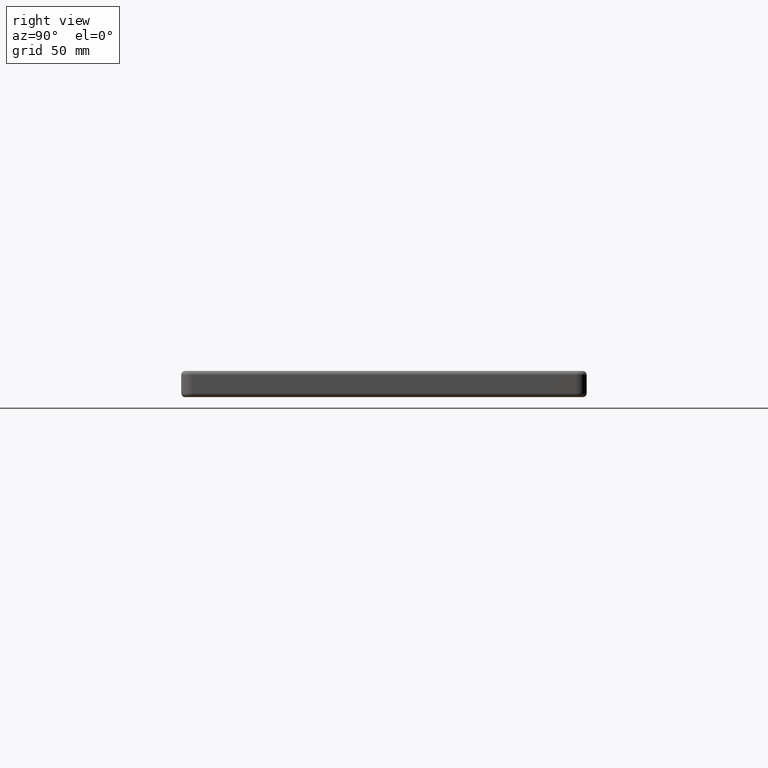
[diagram: clean part render]
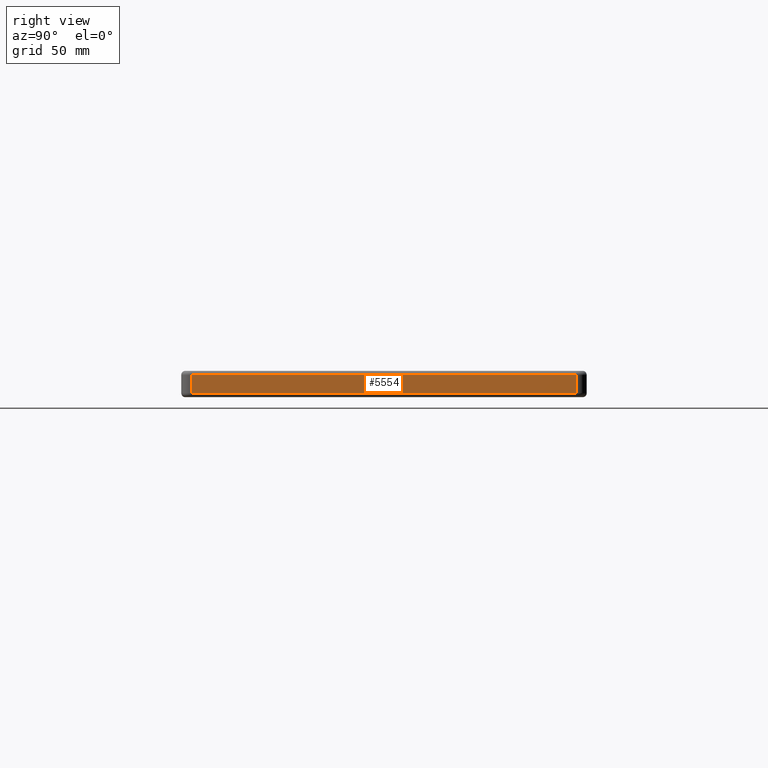
[diagram: same view with one face highlighted and labeled with its STEP entity id]
A machine part, right view. The second image highlights one B-rep face of the part: STEP entity #5554.
In plain terms, the highlighted planar face has unit normal (1, 0, -0).
Its self-contained STEP definition (entity closure, byte-faithful):
#133 = CARTESIAN_POINT ( 'NONE',  ( 150.0000000000000900, -95.00000000000007100, -2.000000000000001800 ) ) ;
#860 = CARTESIAN_POINT ( 'NONE',  ( 150.0000000000000900, -95.00000000000007100, -11.00000000000000000 ) ) ;
#1193 = EDGE_CURVE ( 'NONE', #1411, #6691, #7147, .T. ) ;
#1411 = VERTEX_POINT ( 'NONE', #860 ) ;
#1447 = CARTESIAN_POINT ( 'NONE',  ( 149.9999999999999700, 95.00000000000015600, -11.00000000000000000 ) ) ;
#1770 = CARTESIAN_POINT ( 'NONE',  ( 150.0000000000000900, -95.00000000000007100, -13.00000000000000000 ) ) ;
#2020 = AXIS2_PLACEMENT_3D ( 'NONE', #4152, #6426, #4079 ) ;
#2577 = CARTESIAN_POINT ( 'NONE',  ( 149.9999999999999700, 95.00000000000015600, -2.000000000000003600 ) ) ;
#2667 = CARTESIAN_POINT ( 'NONE',  ( 150.0000000000000300, -95.00000000000008500, -2.000000000000000000 ) ) ;
#2733 = LINE ( 'NONE', #7120, #5317 ) ;
#2987 = VECTOR ( 'NONE', #6653, 1000.000000000000000 ) ;
#3073 = DIRECTION ( 'NONE',  ( 0.0000000000000000000, 0.0000000000000000000, 1.000000000000000000 ) ) ;
#3513 = EDGE_LOOP ( 'NONE', ( #4430, #4118, #6550, #3582 ) ) ;
#3582 = ORIENTED_EDGE ( 'NONE', *, *, #5368, .T. ) ;
#4079 = DIRECTION ( 'NONE',  ( -2.921639538487251300E-016, 1.000000000000000000, 0.0000000000000000000 ) ) ;
#4118 = ORIENTED_EDGE ( 'NONE', *, *, #1193, .T. ) ;
#4152 = CARTESIAN_POINT ( 'NONE',  ( 150.0000000000000300, -95.00000000000007100, -13.00000000000000000 ) ) ;
#4191 = VECTOR ( 'NONE', #6387, 1000.000000000000000 ) ;
#4232 = FACE_OUTER_BOUND ( 'NONE', #3513, .T. ) ;
#4297 = VERTEX_POINT ( 'NONE', #2577 ) ;
#4430 = ORIENTED_EDGE ( 'NONE', *, *, #4978, .F. ) ;
#4499 = EDGE_CURVE ( 'NONE', #6691, #4297, #2733, .T. ) ;
#4665 = DIRECTION ( 'NONE',  ( 0.0000000000000000000, 0.0000000000000000000, 1.000000000000000000 ) ) ;
#4869 = LINE ( 'NONE', #2667, #2987 ) ;
#4903 = VERTEX_POINT ( 'NONE', #133 ) ;
#4978 = EDGE_CURVE ( 'NONE', #1411, #4903, #5940, .T. ) ;
#5317 = VECTOR ( 'NONE', #3073, 1000.000000000000000 ) ;
#5368 = EDGE_CURVE ( 'NONE', #4297, #4903, #4869, .T. ) ;
#5554 = ADVANCED_FACE ( 'NONE', ( #4232 ), #6977, .T. ) ;
#5843 = CARTESIAN_POINT ( 'NONE',  ( 150.0000000000000300, -95.00000000000007100, -11.00000000000000000 ) ) ;
#5940 = LINE ( 'NONE', #1770, #7368 ) ;
#6387 = DIRECTION ( 'NONE',  ( -2.921639538487251300E-016, 1.000000000000000000, 0.0000000000000000000 ) ) ;
#6426 = DIRECTION ( 'NONE',  ( 1.000000000000000000, 2.921639538487251300E-016, -0.0000000000000000000 ) ) ;
#6550 = ORIENTED_EDGE ( 'NONE', *, *, #4499, .T. ) ;
#6653 = DIRECTION ( 'NONE',  ( 2.921639538487251300E-016, -1.000000000000000000, -0.0000000000000000000 ) ) ;
#6691 = VERTEX_POINT ( 'NONE', #1447 ) ;
#6977 = PLANE ( 'NONE',  #2020 ) ;
#7120 = CARTESIAN_POINT ( 'NONE',  ( 149.9999999999999700, 95.00000000000015600, -13.00000000000000000 ) ) ;
#7147 = LINE ( 'NONE', #5843, #4191 ) ;
#7368 = VECTOR ( 'NONE', #4665, 1000.000000000000000 ) ;